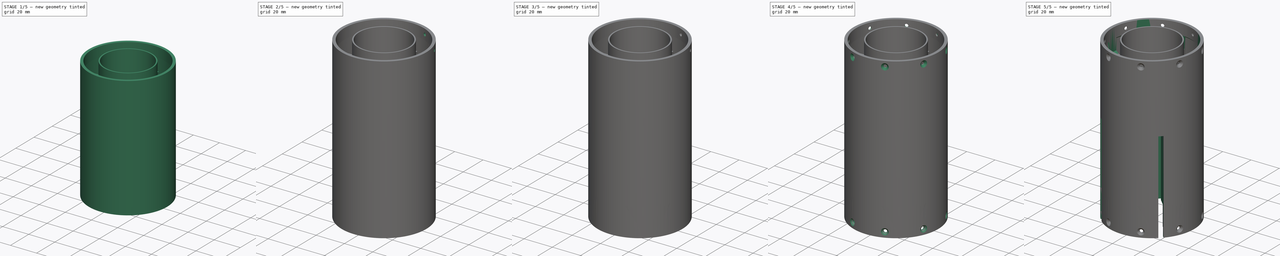
[diagram: build sequence overview — one tinted view per stage of 5, left to right]
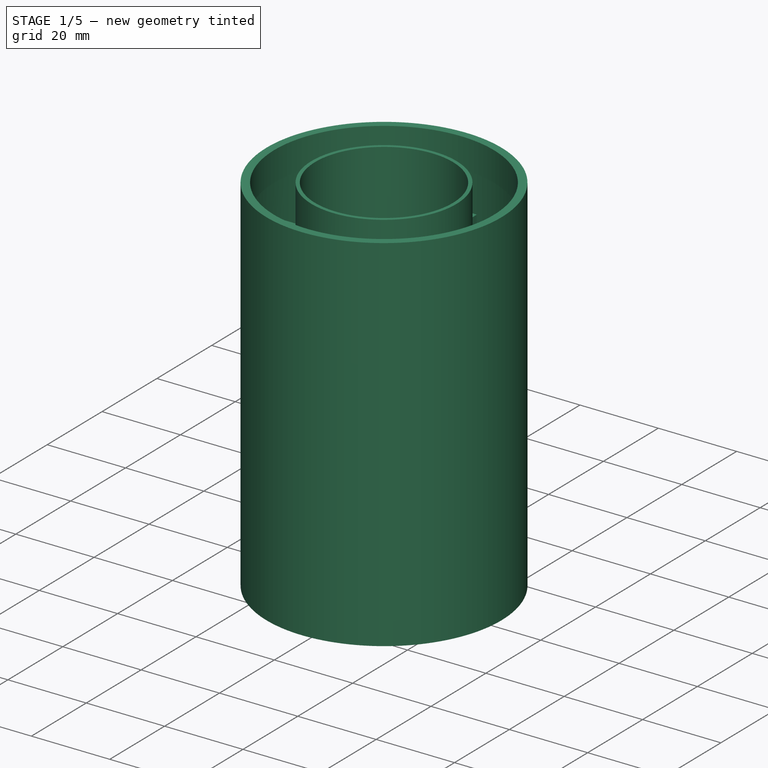
[diagram: stage 1 of 5 — iso view after this stage's code; geometry added in this stage tinted green]
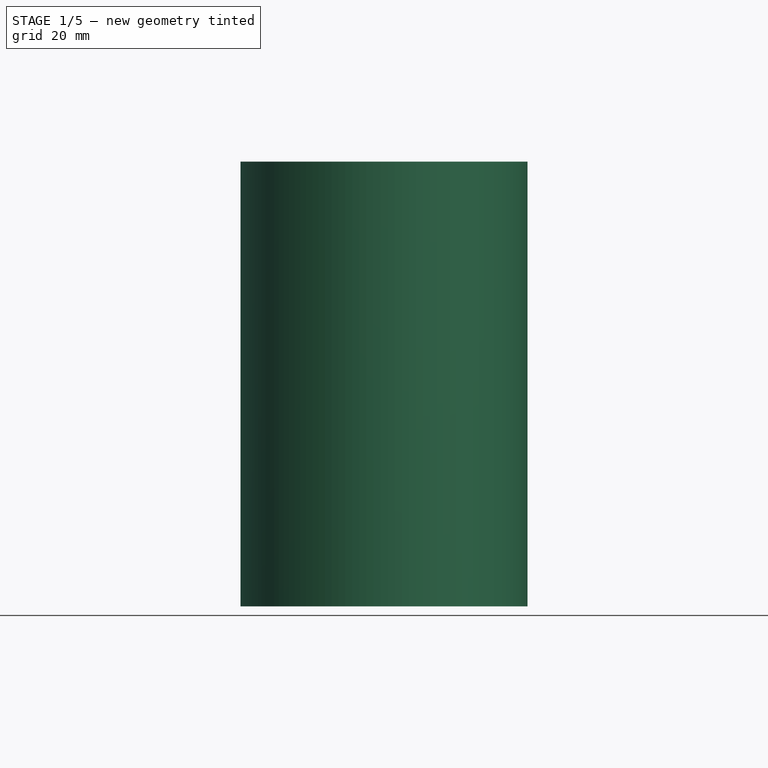
[diagram: stage 1 of 5 — front view after this stage's code; geometry added in this stage tinted green]
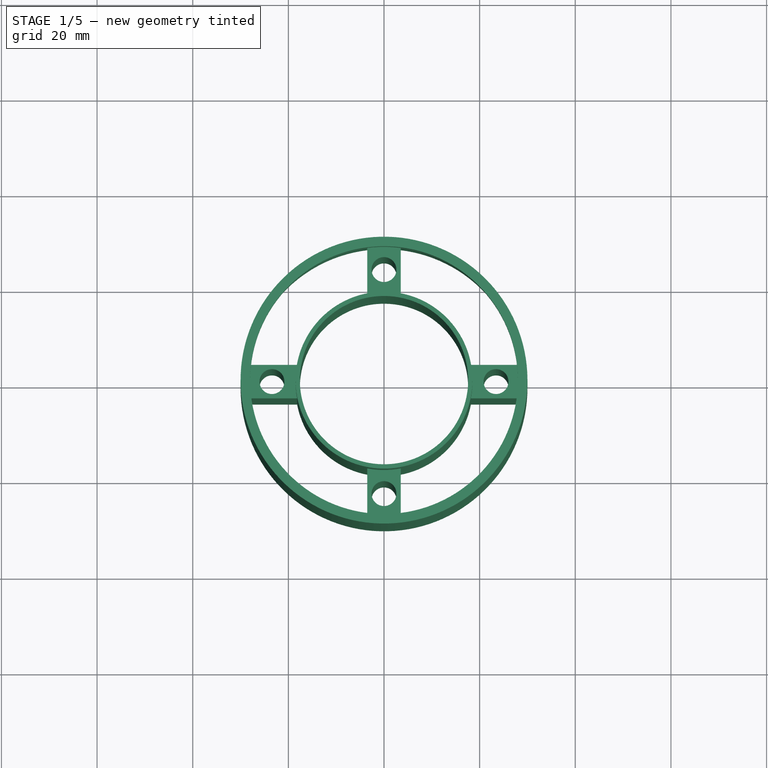
[diagram: stage 1 of 5 — top view after this stage's code; geometry added in this stage tinted green]
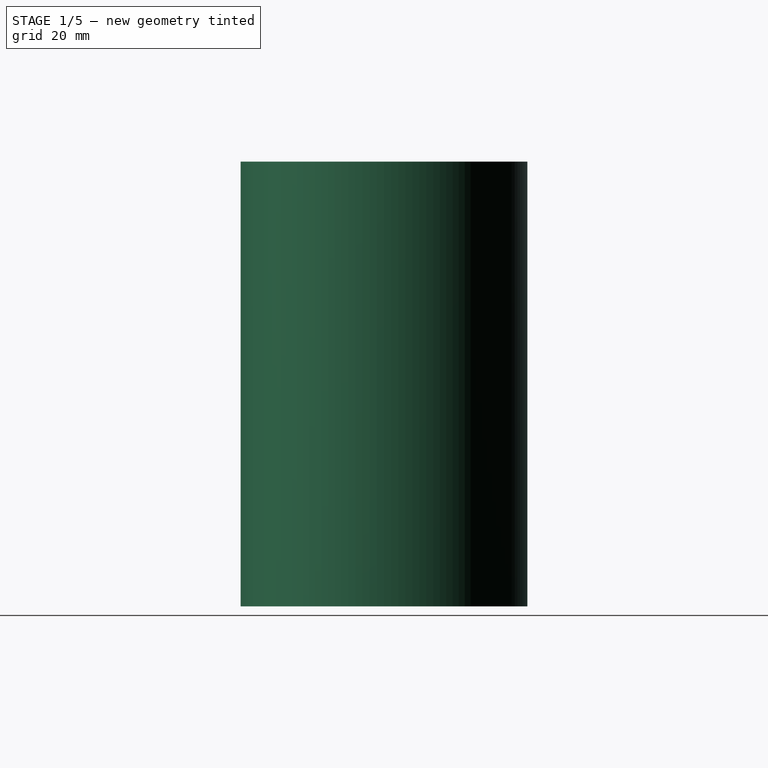
[diagram: stage 1 of 5 — right view after this stage's code; geometry added in this stage tinted green]
FCSTD DOCUMENT  (FreeCAD 1.0R39319 (Git))
Label: lower_fuselage_v1
License: All rights reserved
objects: Sketcher::SketchObject×21, PartDesign::Pad×10, PartDesign::Pocket×9, PartDesign::Plane×5, PartDesign::PolarPattern×4, PartDesign::Chamfer×4, PartDesign::Fillet×1, PartDesign::Body×1
note: 128 computed .brp shape members not serialized (recipe doc carries the construction recipe); baked Part::Feature solids carry a one-line shape summary decoded from their .brp

FEATURE [Sketcher::SketchObject] Sketch
  ArcFitTolerance = 1e-06
  AttachmentSupport = -> [XY_Plane]
  FullyConstrained = true
  MakeInternals = false
  MapMode = 5
  sketch-geometry (2):
    g0: Circle CenterX=0 CenterY=0 CenterZ=0 NormalX=0 NormalY=0 NormalZ=1 AngleXU=0 Radius=30
    g1: Circle CenterX=0 CenterY=0 CenterZ=0 NormalX=0 NormalY=0 NormalZ=1 AngleXU=0 Radius=29
  constraints (4):
    c: Coincident(g0,g-1)
    c: Diameter(g1) = 58
    c: Coincident(g1,g0)
    c: Diameter(g0) = 60
FEATURE [PartDesign::Pad] Pad  label="fusoliera"
  Direction = (0,0,1)
  Length = 93
  Length2 = 10
  Profile = -> Sketch
  ReferenceAxis = -> Sketch [N_Axis]
  Refine = true
  Suppressed = false
  Type = 0
FEATURE [Sketcher::SketchObject] Sketch001
  ArcFitTolerance = 1e-06
  AttachmentSupport = -> [Pad]
  ExternalGeometry = -> [Pad]
  FullyConstrained = true
  MakeInternals = false
  MapMode = 5
  Placement = pos=(0,0,93) rot=(0,0,1;0rad)
  sketch-geometry (2):
    g0: Circle CenterX=0 CenterY=0 CenterZ=0 NormalX=0 NormalY=0 NormalZ=1 AngleXU=0 Radius=29
    g1: Circle CenterX=0 CenterY=0 CenterZ=0 NormalX=0 NormalY=0 NormalZ=1 AngleXU=0 Radius=28
  constraints (4):
    c: Coincident(g0,g-1)
    c: Tangent(g0,g-3)
    c: Diameter(g1) = 56
    c: Coincident(g1,g0)
FEATURE [PartDesign::Pad] Pad001  label="rinforzo_sup"
  BaseFeature = -> Pad
  Direction = (0,0,1)
  Length = 7.5
  Length2 = 10
  Profile = -> Sketch001
  ReferenceAxis = -> Sketch001 [N_Axis]
  Refine = true
  Reversed = true
  Suppressed = false
  Type = 0
FEATURE [Sketcher::SketchObject] Sketch002
  ArcFitTolerance = 1e-06
  AttachmentOffset = pos=(0,0,10) rot=(0,0,1;0rad)
  AttachmentSupport = -> [Pad001]
  ExternalGeometry = -> [Pad001]
  FullyConstrained = false
  MakeInternals = false
  MapMode = 5
  Placement = pos=(0,0,75.5) rot=(1,0,0;3.14159rad)
  sketch-geometry (4):
    g0: LineSegment StartX=-3.5 StartY=29.0882 StartZ=0 EndX=-3.5 EndY=18.0882 EndZ=0
    g1: LineSegment StartX=-3.5 StartY=18.0882 StartZ=0 EndX=3.5 EndY=18.0882 EndZ=0
    g2: LineSegment StartX=3.5 StartY=18.0882 StartZ=0 EndX=3.5 EndY=29.0882 EndZ=0
    g3: LineSegment StartX=3.5 StartY=29.0882 StartZ=0 EndX=-3.5 EndY=29.0882 EndZ=0
  constraints (10):
    c: Coincident(g0,g1)
    c: Coincident(g1,g2)
    c: Coincident(g2,g3)
    c: Coincident(g3,g0)
    c: Vertical(g0)
    c: Vertical(g2)
    c: Horizontal(g3)
    c: DistanceX(g0,g1) = 7
    c: Distance(g0,g0) = 11
    c: Symmetric(g0,g1,g-2)
FEATURE [PartDesign::Pad] Pad002  label="centraggio_motore"
  BaseFeature = -> Pad001
  Direction = (0,0,-1)
  Length = 75.5
  Length2 = 10
  Profile = -> Sketch002
  ReferenceAxis = -> Sketch002 [N_Axis]
  Refine = true
  Suppressed = false
  Type = 0
FEATURE [Sketcher::SketchObject] Sketch003
  ArcFitTolerance = 1e-06
  FullyConstrained = true
  MakeInternals = false
  MapMode = 5
  Placement = pos=(0,0,0) rot=(1,0,0;3.14159rad)
  sketch-geometry (1):
    g0: Circle CenterX=0 CenterY=23.4279 CenterZ=0 NormalX=0 NormalY=0 NormalZ=1 AngleXU=0 Radius=2.6
  constraints (3):
    c: Diameter(g0) = 5.2
    c: PointOnObject(g0,g-2)
    c: DistanceY(g-1,g0) = 23.4279
FEATURE [PartDesign::Pocket] Pocket  label="sede_tondo"
  BaseFeature = -> Pad002
  Direction = (0,0,1)
  Length = 5
  Length2 = 5
  Profile = -> Sketch003
  ReferenceAxis = -> Sketch003 [N_Axis]
  Refine = true
  Suppressed = false
  Type = 1
FEATURE [PartDesign::PolarPattern] PolarPattern
  Angle = 360
  Axis = -> Sketch002 [N_Axis]
  BaseFeature = -> Pocket
  Mode = 0
  Occurrences = 4
  Offset = 120
  Originals = -> [Pad002,Pocket]
  Refine = true
  Suppressed = false
  TransformMode = 0
FEATURE [Sketcher::SketchObject] Sketch004
  ArcFitTolerance = 1e-06
  AttachmentSupport = -> [PolarPattern]
  FullyConstrained = true
  MakeInternals = false
  MapMode = 5
  Placement = pos=(0,0,0) rot=(1,0,0;3.14159rad)
  sketch-geometry (2):
    g0: Circle CenterX=0 CenterY=0 CenterZ=0 NormalX=0 NormalY=0 NormalZ=1 AngleXU=0 Radius=18.5
    g1: Circle CenterX=0 CenterY=0 CenterZ=0 NormalX=0 NormalY=0 NormalZ=1 AngleXU=0 Radius=17.6
  constraints (4):
    c: Diameter(g0) = 37
    c: Coincident(g0,g-1)
    c: Diameter(g1) = 35.2
    c: Coincident(g1,g0)
FEATURE [PartDesign::Pad] Pad003  label="tubo_motore"
  BaseFeature = -> PolarPattern
  Direction = (0,0,-1)
  Length = 93
  Length2 = 10
  Profile = -> Sketch004
  ReferenceAxis = -> Sketch004 [N_Axis]
  Refine = true
  Reversed = true
  Suppressed = false
  Type = 0
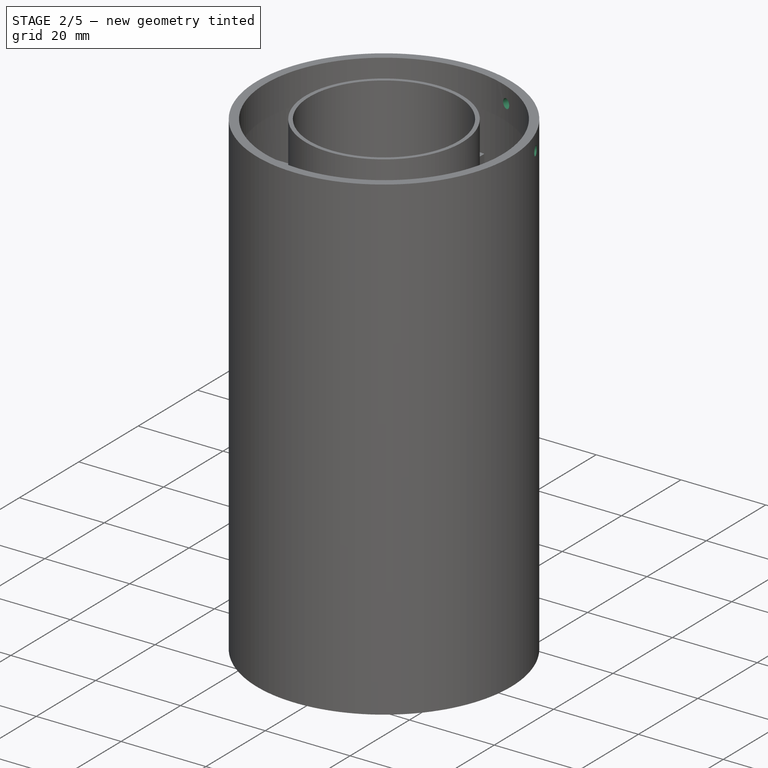
[diagram: stage 2 of 5 — iso view after this stage's code; geometry added in this stage tinted green]
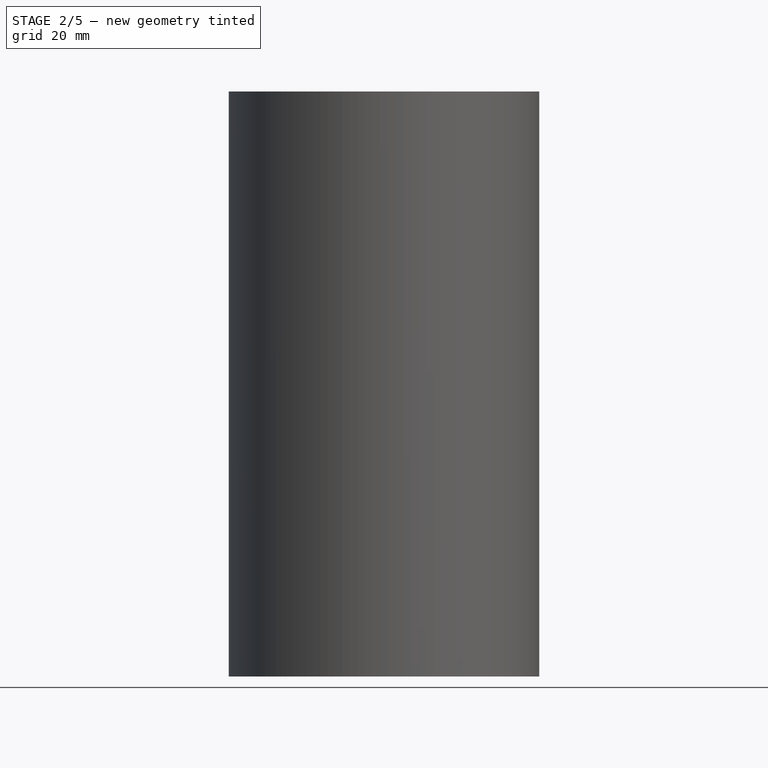
[diagram: stage 2 of 5 — front view after this stage's code; geometry added in this stage tinted green]
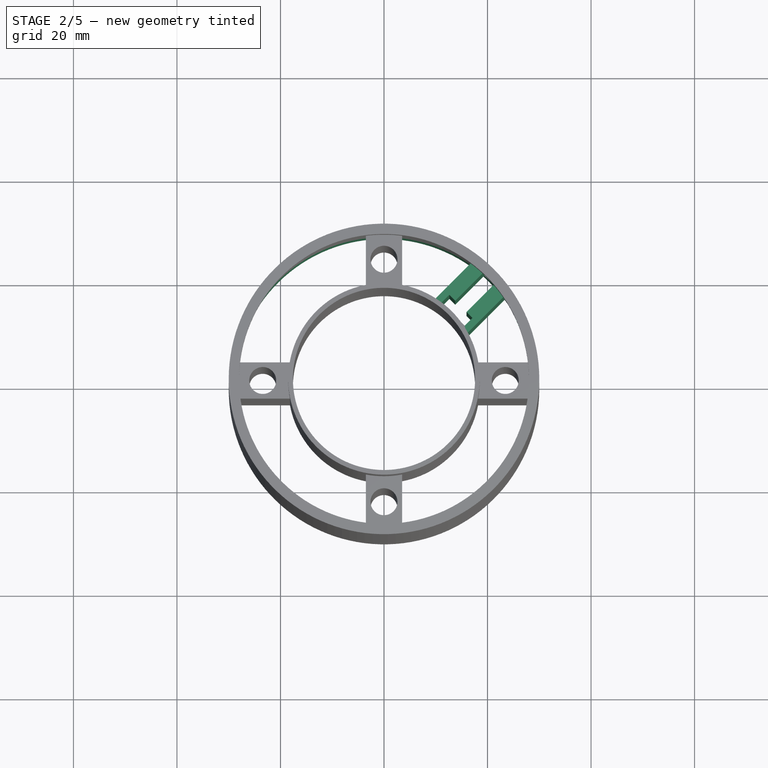
[diagram: stage 2 of 5 — top view after this stage's code; geometry added in this stage tinted green]
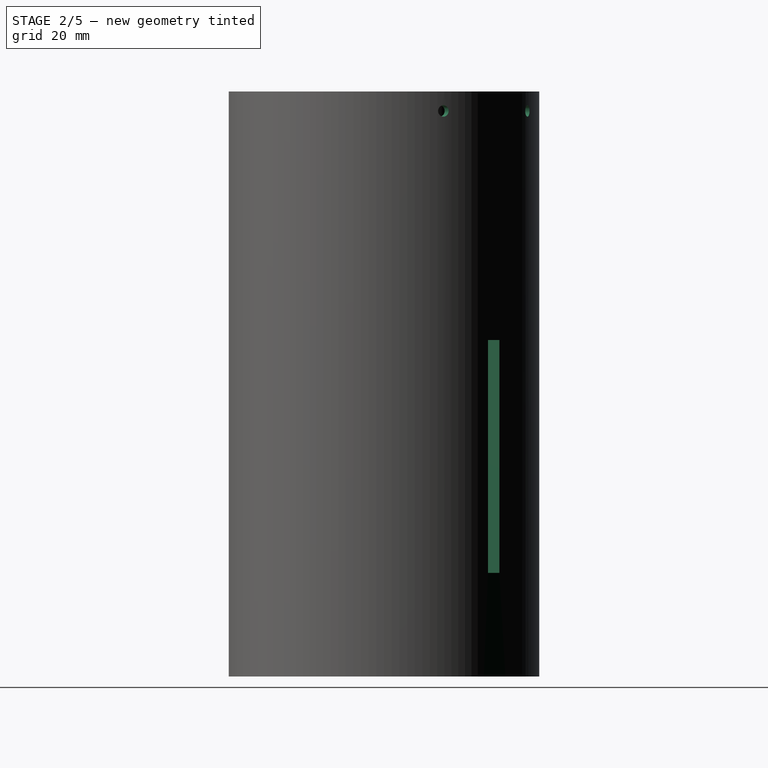
[diagram: stage 2 of 5 — right view after this stage's code; geometry added in this stage tinted green]
FEATURE [Sketcher::SketchObject] Sketch005  label="disegno_di_costruzione"
  ArcFitTolerance = 1e-06
  AttachmentSupport = -> [Pad003]
  ExternalGeometry = -> [Pad003]
  FullyConstrained = true
  MakeInternals = false
  MapMode = 5
  Placement = pos=(0,0,93) rot=(0,0,1;0rad)
  sketch-geometry (3):
    g0: LineSegment StartX=0 StartY=0 StartZ=0 EndX=21.2132 EndY=21.2132 EndZ=0
    g1: LineSegment StartX=0 StartY=0 StartZ=0 EndX=27.7164 EndY=11.4805 EndZ=0
    g2: LineSegment StartX=0 StartY=0 StartZ=0 EndX=11.4805 EndY=27.7164 EndZ=0
  constraints (9):
    c: Coincident(g0,g-1)
    c: PointOnObject(g0,g-3)
    c: Coincident(g1,g0)
    c: PointOnObject(g1,g-3)
    c: Coincident(g2,g0)
    c: PointOnObject(g2,g-3)
    c: Angle(g1,g2) = 0.785398
    c: Angle(g-1,g0) = 0.785398
    c: Angle(g1,g0) = 0.392699
FEATURE [PartDesign::Plane] DatumPlane
  AttachmentSupport = -> [Sketch005]
  Length = 97.6296
  MapMode = 7
  Placement = pos=(27.7164,11.4805,93) rot=(0.726831,-0.485653,-0.485653;1.88458rad)
  ResizeMode = 0
  Width = 137.236
FEATURE [PartDesign::Plane] DatumPlane001
  AttachmentSupport = -> [Sketch005]
  Length = 97.6296
  MapMode = 7
  Placement = pos=(11.4805,27.7164,93) rot=(0.962637,-0.19148,-0.19148;1.60887rad)
  ResizeMode = 0
  Width = 137.236
FEATURE [Sketcher::SketchObject] Sketch006
  ArcFitTolerance = 1e-06
  AttachmentSupport = -> [DatumPlane]
  FullyConstrained = true
  MakeInternals = false
  MapMode = 5
  Placement = pos=(27.7164,11.4805,93) rot=(0.726831,-0.485653,-0.485653;1.88458rad)
  sketch-geometry (1):
    g0: Circle CenterX=0 CenterY=-3.75 CenterZ=0 NormalX=0 NormalY=0 NormalZ=1 AngleXU=0 Radius=1.1
  constraints (3):
    c: Diameter(g0) = 2.2
    c: PointOnObject(g0,g-2)
    c: Distance(g0,g-1) = 3.75
FEATURE [PartDesign::Pocket] Pocket001  label="sede_viti_sup_1"
  BaseFeature = -> Pad003
  Direction = (0.92388,0.382683,0)
  Length = 3
  Length2 = 5
  Profile = -> Sketch006
  ReferenceAxis = -> Sketch006 [N_Axis]
  Refine = true
  Reversed = true
  Suppressed = false
  Type = 0
  UpToShape = -> [Pad003]
FEATURE [Sketcher::SketchObject] Sketch007
  ArcFitTolerance = 1e-06
  AttachmentSupport = -> [DatumPlane001]
  FullyConstrained = true
  MakeInternals = false
  MapMode = 5
  Placement = pos=(11.4805,27.7164,93) rot=(0.962637,-0.19148,-0.19148;1.60887rad)
  sketch-geometry (1):
    g0: Circle CenterX=0 CenterY=-3.75 CenterZ=0 NormalX=0 NormalY=0 NormalZ=1 AngleXU=0 Radius=1.1
  constraints (3):
    c: Diameter(g0) = 2.2
    c: PointOnObject(g0,g-2)
    c: DistanceY(g0,g-1) = 3.75
FEATURE [PartDesign::Pocket] Pocket002  label="sede_viti_sup_2"
  BaseFeature = -> Pocket001
  Direction = (0.382683,0.92388,3e-16)
  Length = 3
  Length2 = 5
  Profile = -> Sketch007
  ReferenceAxis = -> Sketch007 [N_Axis]
  Refine = true
  Reversed = true
  Suppressed = false
  Type = 0
FEATURE [Sketcher::SketchObject] Sketch008
  ArcFitTolerance = 1e-06
  AttachmentSupport = -> [Pocket002]
  ExternalGeometry = -> [Sketch005,Pocket002]
  FullyConstrained = true
  MakeInternals = false
  MapMode = 5
  Placement = pos=(0,0,0) rot=(1,0,0;3.14159rad)
  sketch-geometry (5):
    g0: LineSegment StartX=9.22774 StartY=-15.6624 StartZ=0 EndX=15.6624 EndY=-9.22774 EndZ=0
    g1: LineSegment StartX=15.6624 StartY=-9.22774 StartZ=0 EndX=23.7234 EndY=-17.2888 EndZ=0
    g2: LineSegment StartX=23.7234 StartY=-17.2888 StartZ=0 EndX=17.2888 EndY=-23.7234 EndZ=0
    g3: LineSegment StartX=17.2888 StartY=-23.7234 StartZ=0 EndX=9.22774 EndY=-15.6624 EndZ=0
    g4: GeomPoint X=20.5061 Y=-20.5061 Z=0
  constraints (14):
    c: Coincident(g0,g1)
    c: Coincident(g1,g2)
    c: Coincident(g2,g3)
    c: Coincident(g3,g0)
    c: Parallel(g3,g1)
    c: Parallel(g3,g-3)
    c: Perpendicular(g3,g0)
    c: Perpendicular(g3,g2)
    c: Tangent(g-5,g2)
    c: Tangent(g0,g-4)
    c: Distance(g2,g1) = 9.1
    c: PointOnObject(g4,g-5)
    c: PointOnObject(g4,g-3)
    c: Distance(g4,g1) = 4.55
FEATURE [PartDesign::Pad] Pad004  label="fin_can_1"
  BaseFeature = -> Pocket002
  Direction = (0,0,-1)
  Length = 45
  Length2 = 10
  Profile = -> Sketch008
  ReferenceAxis = -> Sketch008 [N_Axis]
  Refine = true
  Reversed = true
  Suppressed = false
  Type = 0
FEATURE [Sketcher::SketchObject] Sketch009
  ArcFitTolerance = 1e-06
  AttachmentSupport = -> [Pad004]
  ExternalGeometry = -> [Sketch005,Pad004]
  FullyConstrained = false
  MakeInternals = false
  MapMode = 5
  Placement = pos=(0,0,0) rot=(1,0,0;3.14159rad)
  sketch-geometry (10):
    g0: LineSegment StartX=12.2683 StartY=-14.4603 StartZ=0 EndX=14.4603 EndY=-12.2683 EndZ=0
    g1: LineSegment StartX=15.9453 StartY=-13.7532 StartZ=0 EndX=22.3092 EndY=-20.1172 EndZ=0
    g2: LineSegment StartX=22.3092 StartY=-20.1172 StartZ=0 EndX=20.1172 EndY=-22.3092 EndZ=0
    g3: LineSegment StartX=20.1172 StartY=-22.3092 StartZ=0 EndX=13.7532 EndY=-15.9453 EndZ=0
    g4: LineSegment StartX=14.4603 StartY=-12.2683 StartZ=0 EndX=15.5917 EndY=-11.1369 EndZ=0
    g5: LineSegment StartX=15.5917 StartY=-11.1369 StartZ=0 EndX=17.0766 EndY=-12.6219 EndZ=0
    g6: LineSegment StartX=17.0766 StartY=-12.6219 StartZ=0 EndX=15.9453 EndY=-13.7532 EndZ=0
    g7: LineSegment StartX=13.7532 StartY=-15.9453 StartZ=0 EndX=12.6219 EndY=-17.0766 EndZ=0
    g8: LineSegment StartX=12.6219 StartY=-17.0766 StartZ=0 EndX=11.1369 EndY=-15.5917 EndZ=0
    g9: LineSegment StartX=11.1369 StartY=-15.5917 StartZ=0 EndX=12.2683 EndY=-14.4603 EndZ=0
  constraints (28):
    c: Coincident(g1,g2)
    c: Coincident(g2,g3)
    c: Parallel(g3,g1)
    c: Parallel(g-3,g3)
    c: Perpendicular(g0,g3)
    c: Perpendicular(g1,g2)
    c: Tangent(g2,g-4)
    c: Distance(g2,g0) = 11.1
    c: Distance(g2,g1) = 3.1
    c: Distance(g2,g-3) = 1.55
    c: Coincident(g0,g4)
    c: Coincident(g4,g5)
    c: Coincident(g5,g6)
    c: Coincident(g7,g8)
    c: Coincident(g8,g9)
    c: Coincident(g9,g0)
    c: Parallel(g9,g0)
    c: Parallel(g4,g0)
    c: Parallel(g7,g0)
    c: Parallel(g6,g0)
    c: Perpendicular(g8,g7)
    c: Perpendicular(g6,g5)
    c: Distance(g6,g5) = 1.6
    c: Distance(g7,g7) = 1.6
    c: Distance(g8,g7) = 2.1
    c: Distance(g4,g5) = 2.1
    c: Coincident(g1,g6)
    c: Coincident(g3,g7)
FEATURE [PartDesign::Pocket] Pocket003  label="fin_can_2"
  BaseFeature = -> Pad004
  Direction = (0,0,1)
  Length = 45
  Length2 = 5
  Profile = -> Sketch009
  ReferenceAxis = -> Sketch009 [N_Axis]
  Refine = true
  Suppressed = false
  Type = 0
FEATURE [Sketcher::SketchObject] Sketch011
  ArcFitTolerance = 1e-06
  FullyConstrained = true
  MakeInternals = false
  MapMode = 5
  Placement = pos=(0,0,0) rot=(1,0,0;3.14159rad)
  sketch-geometry (2):
    g0: Circle CenterX=0 CenterY=0 CenterZ=0 NormalX=0 NormalY=0 NormalZ=1 AngleXU=0 Radius=30
    g1: Circle CenterX=0 CenterY=0 CenterZ=0 NormalX=0 NormalY=0 NormalZ=1 AngleXU=0 Radius=29
  constraints (4):
    c: Coincident(g0,g-1)
    c: Tangent(g0,g-3)
    c: Coincident(g1,g0)
    c: Tangent(g1,g-4)
FEATURE [PartDesign::Pad] Pad006  label="fusoliera_inf"
  BaseFeature = -> Pocket003
  Direction = (0,-1e-16,-1)
  Length = 20
  Length2 = 10
  Profile = -> Sketch011
  ReferenceAxis = -> Sketch011 [N_Axis]
  Refine = true
  Suppressed = false
  Type = 0
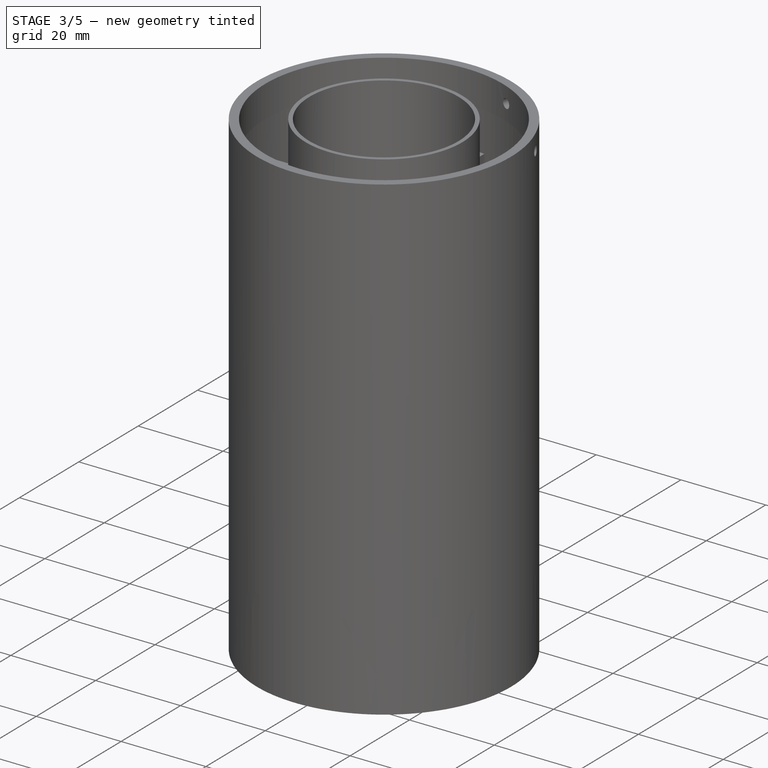
[diagram: stage 3 of 5 — iso view after this stage's code; geometry added in this stage tinted green]
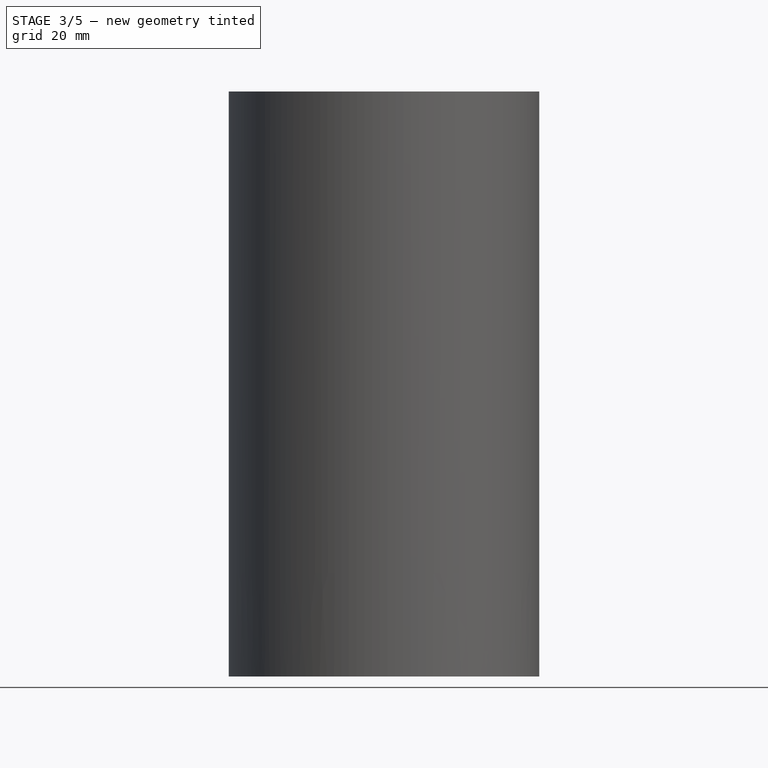
[diagram: stage 3 of 5 — front view after this stage's code; geometry added in this stage tinted green]
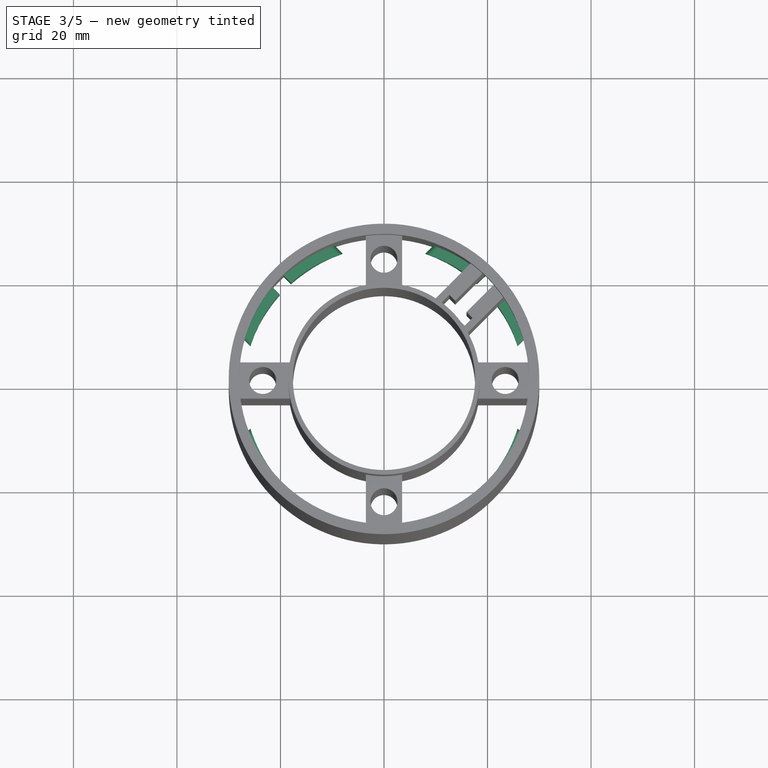
[diagram: stage 3 of 5 — top view after this stage's code; geometry added in this stage tinted green]
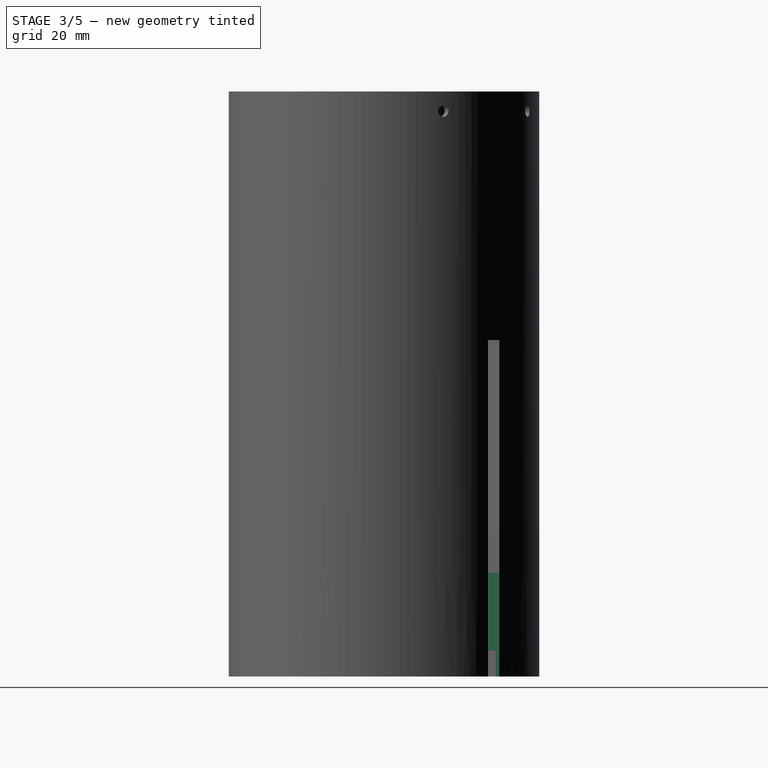
[diagram: stage 3 of 5 — right view after this stage's code; geometry added in this stage tinted green]
FEATURE [Sketcher::SketchObject] Sketch012
  ArcFitTolerance = 1e-06
  AttachmentSupport = -> [Pad006]
  ExternalGeometry = -> [Sketch005]
  FullyConstrained = false
  MakeInternals = false
  MapMode = 5
  Placement = pos=(0,0,-20) rot=(1,0,0;3.14159rad)
  sketch-geometry (4):
    g0: LineSegment StartX=20.1172 StartY=-22.3092 StartZ=0 EndX=22.3092 EndY=-20.1172 EndZ=0
    g1: LineSegment StartX=22.3092 StartY=-20.1172 StartZ=0 EndX=21.3422 EndY=-19.1502 EndZ=0
    g2: LineSegment StartX=20.1172 StartY=-22.3092 StartZ=0 EndX=19.1502 EndY=-21.3422 EndZ=0
    g3: LineSegment StartX=19.1502 StartY=-21.3422 StartZ=0 EndX=21.3422 EndY=-19.1502 EndZ=0
  constraints (10):
    c: Perpendicular(g-3,g0)
    c: Symmetric(g0,g0,g-3)
    c: Distance(g0,g0) = 3.1
    c: Coincident(g1,g0)
    c: Coincident(g2,g0)
    c: Coincident(g3,g2)
    c: Coincident(g3,g1)
    c: Perpendicular(g0,g2)
    c: Perpendicular(g0,g1)
    c: Parallel(g0,g3)
FEATURE [PartDesign::Pocket] Pocket004  label="fin_can_5"
  BaseFeature = -> Pad006
  Direction = (0,0,1)
  Length = 20
  Length2 = 5
  Profile = -> Sketch012
  ReferenceAxis = -> Sketch012 [N_Axis]
  Refine = true
  Suppressed = false
  Type = 0
FEATURE [PartDesign::Plane] DatumPlane002
  Length = 104.865
  MapMode = 7
  Placement = pos=(20.0889,22.2809,-20) rot=(0.281085,0.678598,0.678598;2.59356rad)
  ResizeMode = 0
  Width = 138.013
FEATURE [Sketcher::SketchObject] Sketch013
  ArcFitTolerance = 1e-06
  AttachmentSupport = -> [DatumPlane002]
  FullyConstrained = false
  MakeInternals = false
  MapMode = 5
  Placement = pos=(20.0889,22.2809,-20) rot=(0.281085,0.678598,0.678598;2.59356rad)
  sketch-geometry (9):
    g0: LineSegment [constr] StartX=-1.55 StartY=21.2508 StartZ=0 EndX=-1.55 EndY=5 EndZ=0
    g1: LineSegment StartX=0 StartY=5 StartZ=0 EndX=3 EndY=5 EndZ=0
    g2: LineSegment StartX=3 StartY=5 StartZ=0 EndX=11.82 EndY=20 EndZ=0
    g3: LineSegment StartX=11.82 StartY=20 StartZ=0 EndX=0 EndY=20 EndZ=0
    g4: LineSegment StartX=0 StartY=20 StartZ=0 EndX=0 EndY=5 EndZ=0
    g5: LineSegment StartX=-3.1 StartY=5 StartZ=0 EndX=-6.1 EndY=5 EndZ=0
    g6: LineSegment StartX=-6.1 StartY=5 StartZ=0 EndX=-14.92 EndY=20 EndZ=0
    g7: LineSegment StartX=-14.92 StartY=20 StartZ=0 EndX=-3.1 EndY=20 EndZ=0
    g8: LineSegment StartX=-3.1 StartY=20 StartZ=0 EndX=-3.1 EndY=5 EndZ=0
  constraints (26):
    c: Vertical(g0)
    c: Horizontal(g1)
    c: Coincident(g1,g2)
    c: Coincident(g2,g3)
    c: PointOnObject(g3,g-2)
    c: Horizontal(g3)
    c: Coincident(g3,g4)
    c: Coincident(g4,g1)
    c: PointOnObject(g3,g-4)
    c: DistanceX(g0,g1) = 4.55
    c: DistanceX(g0,g2) = 13.37
    c: Coincident(g5,g6)
    c: Coincident(g6,g7)
    c: PointOnObject(g7,g-3)
    c: Horizontal(g7)
    c: Coincident(g7,g8)
    c: Coincident(g8,g5)
    c: DistanceX(g5,g0) = 4.55
    c: PointOnObject(g7,g-4)
    c: DistanceX(g6,g0) = 13.37
    c: PointOnObject(g1,g-2)
    c: PointOnObject(g5,g-3)
    c: Horizontal(g5)
    c: Symmetric(g5,g1,g0)
    c: DistanceY(g-1,g0) = 5
    c: DistanceY(g5,g0) = 0
FEATURE [PartDesign::Pad] Pad007  label="incastro_rear_transition_1"
  BaseFeature = -> Pocket004
  Direction = (0.707107,0.707107,1e-16)
  Length = 7
  Length2 = 10
  Profile = -> Sketch013
  ReferenceAxis = -> Sketch013 [N_Axis]
  Refine = true
  Reversed = true
  Suppressed = false
  Type = 0
FEATURE [PartDesign::PolarPattern] PolarPattern002
  Angle = 360
  Axis = -> Z_Axis
  BaseFeature = -> Pad007
  Mode = 0
  Occurrences = 4
  Offset = 120
  Originals = -> [Pad007]
  Refine = true
  Suppressed = false
  TransformMode = 0
FEATURE [Sketcher::SketchObject] Sketch014
  ArcFitTolerance = 1e-06
  AttachmentSupport = -> [PolarPattern002]
  ExternalGeometry = -> [PolarPattern002]
  FullyConstrained = false
  MakeInternals = false
  MapMode = 5
  Placement = pos=(0,0,-20) rot=(1,0,0;3.14159rad)
  sketch-geometry (2):
    g0: Circle CenterX=0 CenterY=0 CenterZ=0 NormalX=0 NormalY=0 NormalZ=1 AngleXU=0 Radius=27
    g1: Circle CenterX=0 CenterY=0 CenterZ=0 NormalX=0 NormalY=0 NormalZ=1 AngleXU=0 Radius=22.4743
  constraints (2):
    c: Diameter(g0) = 54
    c: Coincident(g0,g-1)
FEATURE [PartDesign::Pocket] Pocket005
  BaseFeature = -> PolarPattern002
  Direction = (0,0,1)
  Length = 20
  Length2 = 5
  Profile = -> Sketch014
  ReferenceAxis = -> Sketch014 [N_Axis]
  Refine = true
  Suppressed = false
  Type = 0
FEATURE [Sketcher::SketchObject] Sketch015
  ArcFitTolerance = 1e-06
  AttachmentSupport = -> [Pocket005]
  FullyConstrained = false
  MakeInternals = false
  MapMode = 5
  Placement = pos=(0,0,-20) rot=(1,0,0;3.14159rad)
  sketch-geometry (2):
    g0: Circle CenterX=0 CenterY=0 CenterZ=0 NormalX=0 NormalY=0 NormalZ=1 AngleXU=0 Radius=30
    g1: Circle CenterX=0 CenterY=0 CenterZ=0 NormalX=0 NormalY=0 NormalZ=1 AngleXU=0 Radius=34.5764
  constraints (3):
    c: Coincident(g0,g-1)
    c: Tangent(g0,g-3)
    c: Coincident(g1,g0)
FEATURE [PartDesign::Pocket] Pocket006
  BaseFeature = -> Pocket005
  Direction = (0,0,1)
  Length = 20
  Length2 = 5
  Profile = -> Sketch015
  ReferenceAxis = -> Sketch015 [N_Axis]
  Refine = true
  Suppressed = false
  Type = 0
FEATURE [PartDesign::Fillet] Fillet
  Base = -> Pocket006 [Edge228,Edge234,Edge232,Edge230,Edge223,Edge226,Edge92,Edge153,Edge208,Edge207,Edge238,Edge220,Edge217,Edge244,Edge248,Edge214,Edge254,Edge211]
  BaseFeature = -> Pocket006
  Radius = 1
  Refine = true
  SupportTransform = false
  Suppressed = false
  UseAllEdges = false
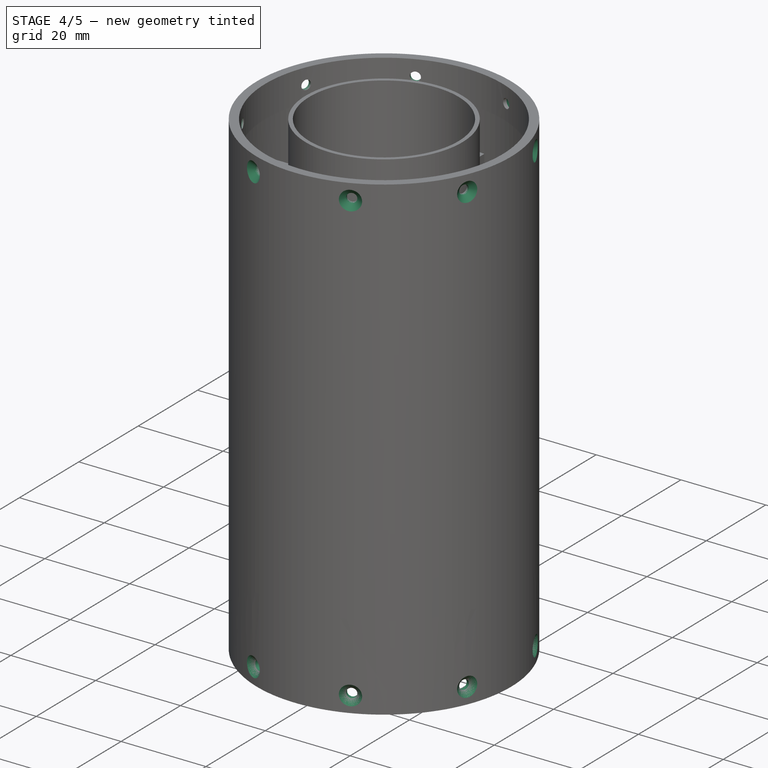
[diagram: stage 4 of 5 — iso view after this stage's code; geometry added in this stage tinted green]
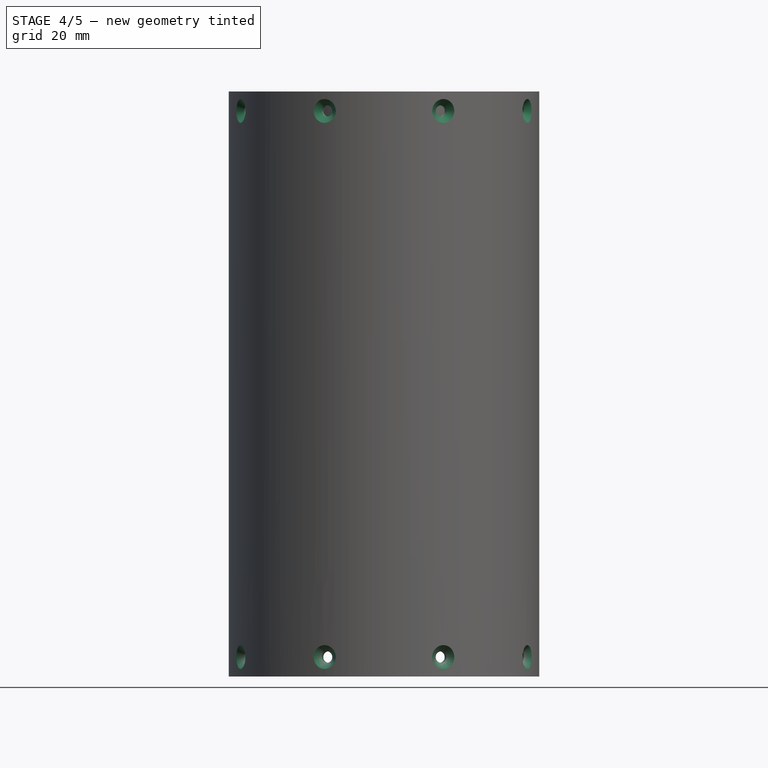
[diagram: stage 4 of 5 — front view after this stage's code; geometry added in this stage tinted green]
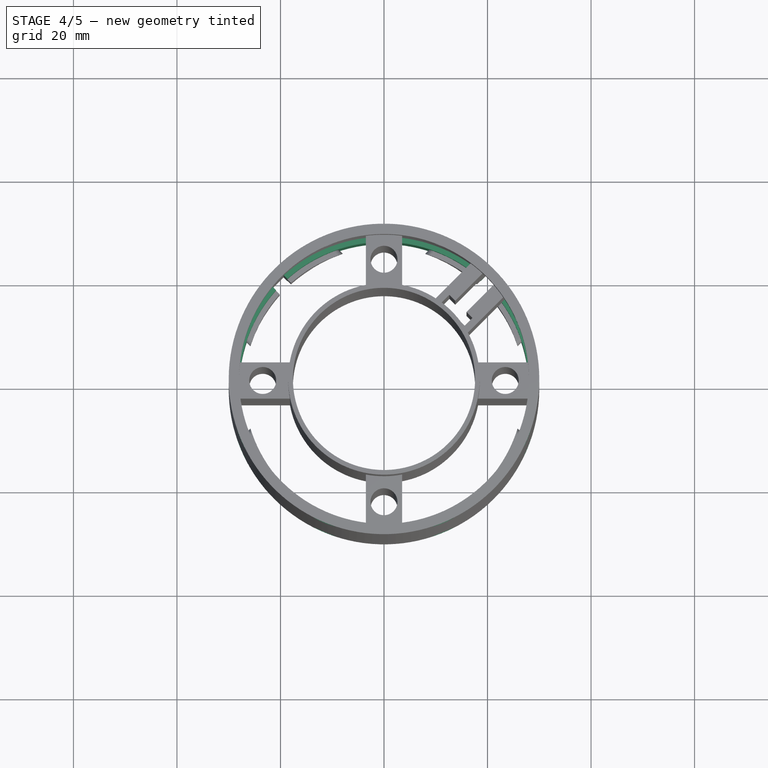
[diagram: stage 4 of 5 — top view after this stage's code; geometry added in this stage tinted green]
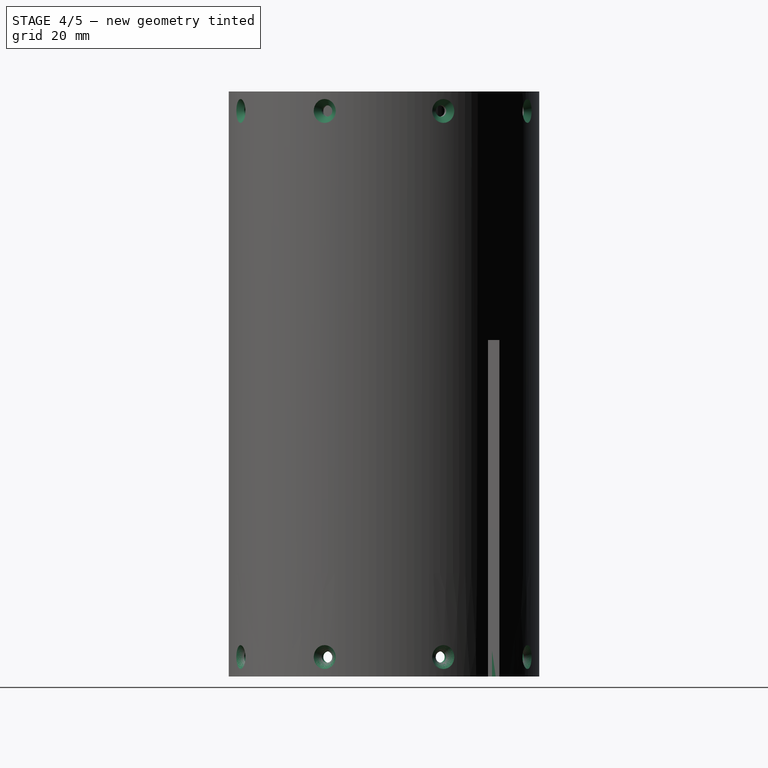
[diagram: stage 4 of 5 — right view after this stage's code; geometry added in this stage tinted green]
FEATURE [Sketcher::SketchObject] Sketch016  label="disegno_di_costruzione_2"
  ArcFitTolerance = 1e-06
  ExternalGeometry = -> [Sketch005]
  FullyConstrained = true
  MakeInternals = false
  MapMode = 5
  Placement = pos=(0,0,-20) rot=(1,0,0;3.14159rad)
  sketch-geometry (2):
    g0: LineSegment StartX=0 StartY=0 StartZ=0 EndX=11.4805 EndY=-27.7164 EndZ=0
    g1: LineSegment StartX=0 StartY=0 StartZ=0 EndX=27.7164 EndY=-11.4805 EndZ=0
  constraints (4):
    c: Coincident(g0,g-1)
    c: Coincident(g0,g-3)
    c: Coincident(g1,g0)
    c: Coincident(g1,g-4)
FEATURE [PartDesign::Plane] DatumPlane003
  AttachmentSupport = -> [Sketch016]
  Length = 97.6296
  MapMode = 7
  Placement = pos=(11.4805,27.7164,-20) rot=(0.962637,-0.19148,-0.19148;1.60887rad)
  ResizeMode = 0
  Width = 137.236
FEATURE [PartDesign::Plane] DatumPlane004
  AttachmentSupport = -> [Sketch016]
  Length = 97.6296
  MapMode = 7
  Placement = pos=(27.7164,11.4805,-20) rot=(0.726831,-0.485653,-0.485653;1.88458rad)
  ResizeMode = 0
  Width = 137.236
FEATURE [Sketcher::SketchObject] Sketch017
  ArcFitTolerance = 1e-06
  AttachmentSupport = -> [DatumPlane003]
  FullyConstrained = true
  MakeInternals = false
  MapMode = 5
  Placement = pos=(11.4805,27.7164,-20) rot=(0.962637,-0.19148,-0.19148;1.60887rad)
  sketch-geometry (1):
    g0: Circle CenterX=0 CenterY=3.75 CenterZ=0 NormalX=0 NormalY=0 NormalZ=1 AngleXU=0 Radius=1.1
  constraints (3):
    c: Diameter(g0) = 2.2
    c: PointOnObject(g0,g-2)
    c: DistanceY(g-1,g0) = 3.75
FEATURE [Sketcher::SketchObject] Sketch018
  ArcFitTolerance = 1e-06
  AttachmentSupport = -> [DatumPlane004]
  FullyConstrained = true
  MakeInternals = false
  MapMode = 5
  Placement = pos=(27.7164,11.4805,-20) rot=(0.726831,-0.485653,-0.485653;1.88458rad)
  sketch-geometry (1):
    g0: Circle CenterX=0 CenterY=3.75 CenterZ=0 NormalX=0 NormalY=0 NormalZ=1 AngleXU=0 Radius=1.1
  constraints (3):
    c: Diameter(g0) = 2.2
    c: PointOnObject(g0,g-2)
    c: DistanceY(g-1,g0) = 3.75
FEATURE [Sketcher::SketchObject] Sketch019
  ArcFitTolerance = 1e-06
  FullyConstrained = false
  MakeInternals = false
  MapMode = 5
  Placement = pos=(0,0,-20) rot=(1,0,0;3.14159rad)
  sketch-geometry (16):
    g0: ArcOfCircle CenterX=0 CenterY=0 CenterZ=0 NormalX=0 NormalY=0 NormalZ=1 AngleXU=0 Radius=29 StartAngle=0.838872 EndAngle=2.30272
    g1: ArcOfCircle CenterX=0 CenterY=0 CenterZ=0 NormalX=0 NormalY=0 NormalZ=1 AngleXU=0 Radius=28 StartAngle=0.840784 EndAngle=2.30081
    g2: LineSegment StartX=19.3808 StartY=21.5728 StartZ=0 EndX=18.6726 EndY=20.8646 EndZ=0
    g3: LineSegment StartX=21.5714 StartY=19.3823 StartZ=0 EndX=20.8633 EndY=18.6742 EndZ=0
    g4: LineSegment StartX=-21.5728 StartY=19.3808 StartZ=0 EndX=-20.8646 EndY=18.6726 EndZ=0
    g5: LineSegment StartX=-19.3808 StartY=21.5728 StartZ=0 EndX=-18.6726 EndY=20.8646 EndZ=0
    g6: ArcOfCircle CenterX=0 CenterY=0 CenterZ=0 NormalX=0 NormalY=0 NormalZ=1 AngleXU=0 Radius=29 StartAngle=2.40967 EndAngle=3.87352
    g7: ArcOfCircle CenterX=0 CenterY=0 CenterZ=0 NormalX=0 NormalY=0 NormalZ=1 AngleXU=0 Radius=28 StartAngle=2.41158 EndAngle=3.87161
    g8: LineSegment StartX=-21.5728 StartY=-19.3808 StartZ=0 EndX=-20.8646 EndY=-18.6726 EndZ=0
    g9: LineSegment StartX=-18.6726 StartY=-20.8646 StartZ=0 EndX=-19.3808 EndY=-21.5728 EndZ=0
    g10: ArcOfCircle CenterX=0 CenterY=0 CenterZ=0 NormalX=0 NormalY=0 NormalZ=1 AngleXU=0 Radius=28 StartAngle=3.98238 EndAngle=5.4424
    g11: ArcOfCircle CenterX=0 CenterY=0 CenterZ=0 NormalX=0 NormalY=0 NormalZ=1 AngleXU=0 Radius=29 StartAngle=3.98046 EndAngle=5.44431
    g12: LineSegment StartX=19.3808 StartY=-21.5728 StartZ=0 EndX=18.6726 EndY=-20.8646 EndZ=0
    g13: LineSegment StartX=21.5728 StartY=-19.3808 StartZ=0 EndX=20.8646 EndY=-18.6726 EndZ=0
    g14: ArcOfCircle CenterX=0 CenterY=0 CenterZ=0 NormalX=0 NormalY=0 NormalZ=1 AngleXU=0 Radius=28 StartAngle=5.55317 EndAngle=7.01327
    g15: ArcOfCircle CenterX=0 CenterY=0 CenterZ=0 NormalX=0 NormalY=0 NormalZ=1 AngleXU=0 Radius=29 StartAngle=5.55126 EndAngle=7.01518
  constraints (41):
    c: Coincident(g0,g-1)
    c: Diameter(g1) = 56
    c: Coincident(g1,g0)
    c: Coincident(g2,g-4)
    c: Parallel(g3,g-5)
    c: Parallel(g2,g-4)
    c: Coincident(g15,g3)
    c: Coincident(g0,g2)
    c: Coincident(g2,g1)
    c: Coincident(g3,g14)
    c: Coincident(g4,g-6)
    c: Coincident(g5,g-7)
    c: Equal(g0,g6)
    c: PointOnObject(g0,g-7)
    c: PointOnObject(g6,g-6)
    c: Coincident(g0,g6)
    c: Equal(g1,g7)
    c: Coincident(g1,g7)
    c: Coincident(g4,g7)
    c: Coincident(g5,g1)
    c: Coincident(g8,g-8)
    c: Coincident(g9,g-9)
    c: Equal(g7,g10)
    c: Coincident(g7,g8)
    c: Coincident(g7,g10)
    c: Equal(g6,g11)
    c: PointOnObject(g6,g8)
    c: PointOnObject(g11,g9)
    c: Coincident(g6,g11)
    c: Coincident(g9,g10)
    c: Coincident(g12,g-11)
    c: Coincident(g13,g-10)
    c: PointOnObject(g13,g14)
    c: Equal(g10,g14)
    c: Coincident(g10,g12)
    c: PointOnObject(g14,g13)
    c: Coincident(g10,g14)
    c: Equal(g11,g15)
    c: PointOnObject(g11,g12)
    c: PointOnObject(g15,g13)
    c: Coincident(g11,g15)
FEATURE [PartDesign::Pad] Pad008  label="rinforzo_inferiore"
  BaseFeature = -> Fillet
  Direction = (0,-1e-16,-1)
  Length = 25
  Length2 = 10
  Profile = -> Sketch019
  ReferenceAxis = -> Sketch019 [N_Axis]
  Refine = true
  Reversed = true
  Suppressed = false
  Type = 0
FEATURE [PartDesign::Pocket] Pocket007  label="sede_viti_inf_1"
  BaseFeature = -> Pad008
  Direction = (0.382683,0.92388,2e-16)
  Length = 3
  Length2 = 5
  Profile = -> Sketch017
  ReferenceAxis = -> Sketch017 [N_Axis]
  Refine = true
  Reversed = true
  Suppressed = false
  Type = 0
FEATURE [PartDesign::Pocket] Pocket008  label="sede_viti_inf_2"
  BaseFeature = -> Pocket007
  Direction = (0.92388,0.382683,3e-16)
  Length = 3
  Length2 = 5
  Profile = -> Sketch018
  ReferenceAxis = -> Sketch018 [N_Axis]
  Refine = true
  Reversed = true
  Suppressed = false
  Type = 0
FEATURE [PartDesign::PolarPattern] PolarPattern003
  Angle = 360
  Axis = -> Z_Axis
  BaseFeature = -> Pocket008
  Mode = 0
  Occurrences = 4
  Offset = 120
  Originals = -> [Pocket001,Pocket002,Pocket007,Pocket008]
  Refine = true
  Suppressed = false
  TransformMode = 0
FEATURE [PartDesign::Chamfer] Chamfer002
  Angle = 45
  Base = -> PolarPattern003 [Edge290,Edge291,Edge289,Edge284,Edge282,Edge283,Edge298,Edge297,Edge296,Edge304,Edge305,Edge303,Edge311,Edge312,Edge310,Edge267,Edge266,Edge265,Edge269,Edge270,Edge268,Edge277,Edge276,Edge275,Edge248,Edge249,Edge247,Edge245,Edge246,Edge264,Edge262,Edge263,Edge261,Edge259,Edge260,Edge258,Edge256,Edge257,Edge255,Edge253,+4 more]
  BaseFeature = -> PolarPattern003
  ChamferType = 0
  FlipDirection = false
  Refine = true
  Size = 1.2
  Size2 = 1
  SupportTransform = false
  Suppressed = false
  UseAllEdges = false
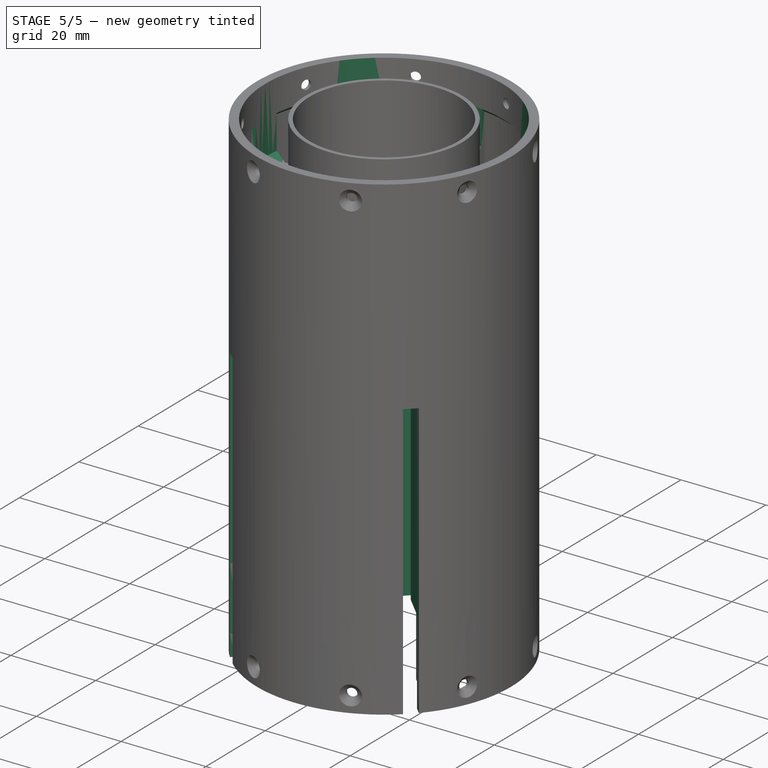
[diagram: stage 5 of 5 — iso view after this stage's code; geometry added in this stage tinted green]
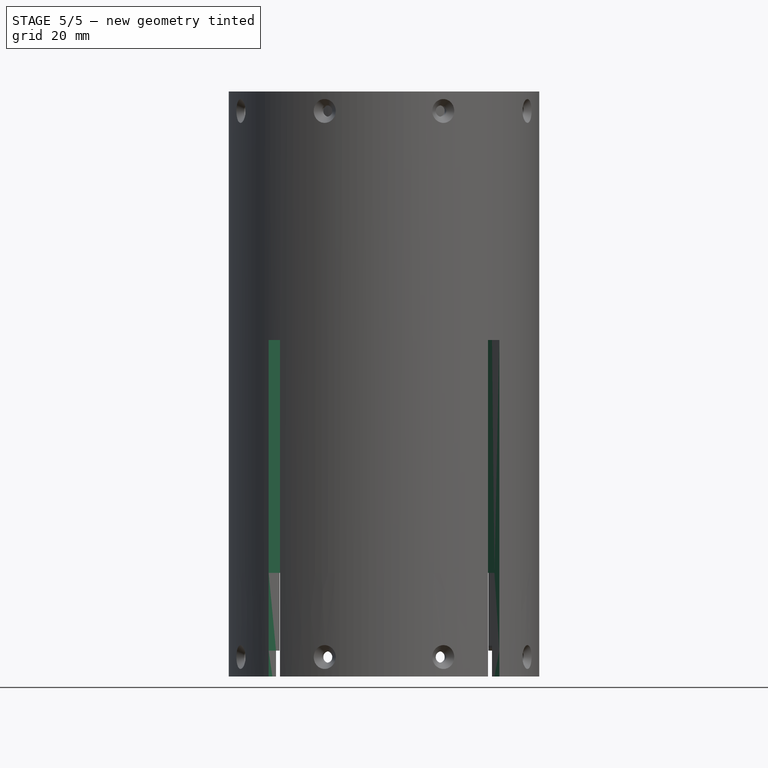
[diagram: stage 5 of 5 — front view after this stage's code; geometry added in this stage tinted green]
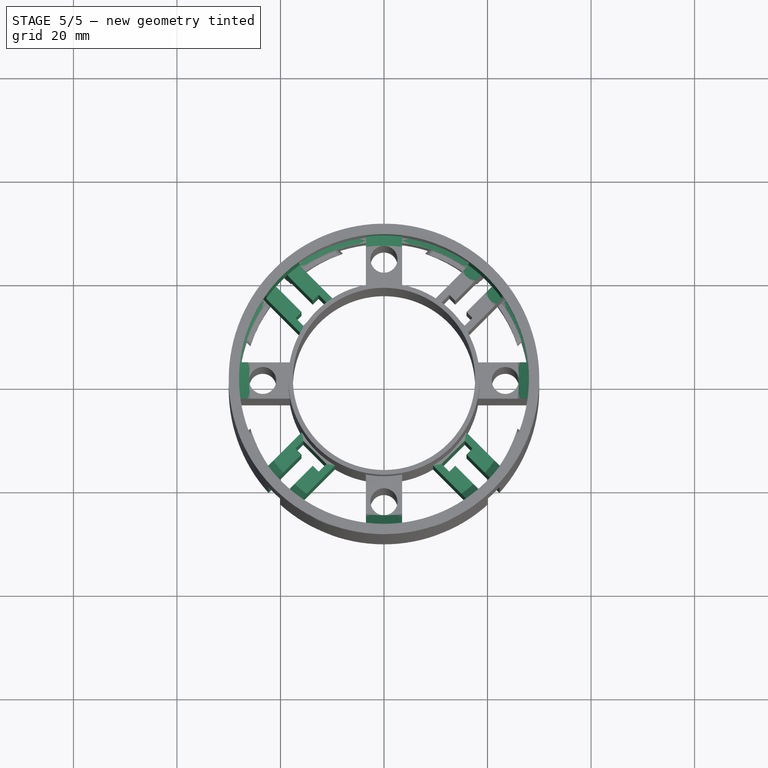
[diagram: stage 5 of 5 — top view after this stage's code; geometry added in this stage tinted green]
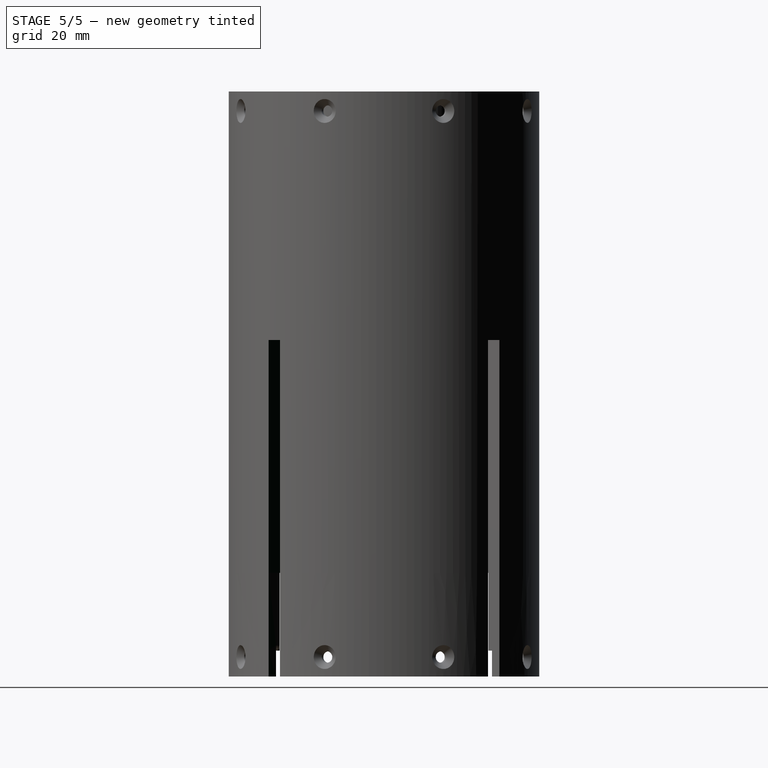
[diagram: stage 5 of 5 — right view after this stage's code; geometry added in this stage tinted green]
FEATURE [PartDesign::PolarPattern] PolarPattern004
  Angle = 360
  Axis = -> Sketch008 [N_Axis]
  BaseFeature = -> Chamfer002
  Mode = 0
  Occurrences = 4
  Offset = 120
  Originals = -> [Pad004,Pocket003,Pocket004]
  Refine = true
  Suppressed = false
  TransformMode = 0
FEATURE [PartDesign::Chamfer] Chamfer003
  Angle = 45
  Base = -> PolarPattern004 [Edge240,Edge235,Edge231,Edge244,Edge249,Edge253,Edge258,Edge265]
  BaseFeature = -> PolarPattern004
  ChamferType = 0
  FlipDirection = false
  Refine = true
  Size = 0.95
  Size2 = 1
  SupportTransform = false
  Suppressed = false
  UseAllEdges = false
FEATURE [Sketcher::SketchObject] Sketch020
  ArcFitTolerance = 1e-06
  AttachmentSupport = -> [Chamfer003]
  ExternalGeometry = -> [Chamfer003]
  FullyConstrained = false
  MakeInternals = false
  MapMode = 5
  Placement = pos=(0,0,75.5) rot=(0,0,1;0rad)
  sketch-geometry (16):
    g0: LineSegment StartX=-3.5 StartY=28.788 StartZ=0 EndX=-3.5 EndY=27.7804 EndZ=0
    g1: LineSegment StartX=3.5 StartY=28.788 StartZ=0 EndX=3.5 EndY=27.7804 EndZ=0
    g2: ArcOfCircle CenterX=0 CenterY=0 CenterZ=0 NormalX=0 NormalY=0 NormalZ=1 AngleXU=0 Radius=29 StartAngle=1.44981 EndAngle=1.69178
    g3: ArcOfCircle CenterX=0 CenterY=0 CenterZ=0 NormalX=0 NormalY=0 NormalZ=1 AngleXU=0 Radius=28 StartAngle=1.44547 EndAngle=1.69612
    g4: ArcOfCircle CenterX=0 CenterY=0 CenterZ=0 NormalX=0 NormalY=0 NormalZ=1 AngleXU=0 Radius=29 StartAngle=6.1622 EndAngle=6.40417
    g5: LineSegment StartX=28.788 StartY=3.5 StartZ=0 EndX=27.7804 EndY=3.5 EndZ=0
    g6: LineSegment StartX=28.788 StartY=-3.50001 StartZ=0 EndX=27.7804 EndY=-3.50001 EndZ=0
    g7: ArcOfCircle CenterX=0 CenterY=0 CenterZ=0 NormalX=0 NormalY=0 NormalZ=1 AngleXU=0 Radius=28 StartAngle=6.15786 EndAngle=6.40851
    g8: LineSegment StartX=3.5 StartY=-28.788 StartZ=0 EndX=3.48942 EndY=-27.7817 EndZ=0
    g9: LineSegment StartX=-3.5 StartY=-28.788 StartZ=0 EndX=-3.48942 EndY=-27.7817 EndZ=0
    g10: ArcOfCircle CenterX=7.1e-15 CenterY=0.032589 CenterZ=0 NormalX=0 NormalY=0 NormalZ=1 AngleXU=0 Radius=29.0324 StartAngle=4.59154 EndAngle=4.83324
    g11: ArcOfCircle CenterX=7.1e-15 CenterY=0.032589 CenterZ=0 NormalX=0 NormalY=0 NormalZ=1 AngleXU=0 Radius=28.0323 StartAngle=4.58759 EndAngle=4.83719
    g12: ArcOfCircle CenterX=0 CenterY=1.31843e-11 CenterZ=0 NormalX=0 NormalY=0 NormalZ=1 AngleXU=0 Radius=29 StartAngle=3.02061 EndAngle=3.26258
    g13: LineSegment StartX=-28.788 StartY=3.49999 StartZ=0 EndX=-27.7804 EndY=3.49999 EndZ=0
    g14: LineSegment StartX=-28.788 StartY=-3.5 StartZ=0 EndX=-27.7804 EndY=-3.5 EndZ=0
    g15: ArcOfCircle CenterX=0 CenterY=1.31843e-11 CenterZ=0 NormalX=0 NormalY=0 NormalZ=1 AngleXU=0 Radius=28 StartAngle=3.01627 EndAngle=3.26692
  constraints (37):
    c: Coincident(g0,g-6)
    c: Coincident(g1,g-6)
    c: Coincident(g2,g-1)
    c: Coincident(g3,g2)
    c: Tangent(g3,g-3)
    c: PointOnObject(g1,g3)
    c: Coincident(g3,g0)
    c: PointOnObject(g3,g-4)
    c: Coincident(g2,g0)
    c: Coincident(g4,g2)
    c: Coincident(g4,g-8)
    c: Coincident(g5,g4)
    c: Coincident(g6,g4)
    c: Horizontal(g6)
    c: PointOnObject(g5,g-3)
    c: PointOnObject(g6,g-3)
    c: Coincident(g7,g2)
    c: Coincident(g7,g6)
    c: Coincident(g7,g5)
    c: Coincident(g8,g-10)
    c: Coincident(g9,g-11)
    c: PointOnObject(g8,g-3)
    c: PointOnObject(g9,g-3)
    c: Coincident(g11,g10)
    c: Coincident(g11,g9)
    c: Coincident(g11,g8)
    c: Coincident(g10,g9)
    c: Coincident(g10,g8)
    c: Coincident(g13,g12)
    c: Horizontal(g13)
    c: Coincident(g14,g12)
    c: Horizontal(g14)
    c: PointOnObject(g13,g-3)
    c: PointOnObject(g14,g-3)
    c: Coincident(g15,g12)
    c: Coincident(g15,g13)
    c: Coincident(g15,g14)
FEATURE [PartDesign::Pad] Pad009  label="rinforzo_fusoliera_1"
  BaseFeature = -> Chamfer003
  Direction = (0,0,1)
  Length = 10
  Length2 = 10
  Profile = -> Sketch020
  ReferenceAxis = -> Sketch020 [N_Axis]
  Refine = true
  Suppressed = false
  Type = 0
FEATURE [Sketcher::SketchObject] Sketch021
  ArcFitTolerance = 1e-06
  AttachmentSupport = -> [Pad009]
  ExternalGeometry = -> [Pad009]
  FullyConstrained = false
  MakeInternals = false
  MapMode = 5
  Placement = pos=(0,0,45) rot=(0,0,1;0rad)
  sketch-geometry (16):
    g0: ArcOfCircle CenterX=0 CenterY=0 CenterZ=0 NormalX=0 NormalY=0 NormalZ=1 AngleXU=0 Radius=29 StartAngle=0.627851 EndAngle=0.942946
    g1: LineSegment StartX=17.0348 StartY=23.4695 StartZ=0 EndX=16.3185 EndY=22.7532 EndZ=0
    g2: LineSegment StartX=23.4695 StartY=17.0348 StartZ=0 EndX=22.7532 EndY=16.3185 EndZ=0
    g3: ArcOfCircle CenterX=0 CenterY=0 CenterZ=0 NormalX=0 NormalY=0 NormalZ=1 AngleXU=0 Radius=28 StartAngle=0.622175 EndAngle=0.948622
    g4: ArcOfCircle CenterX=0 CenterY=0 CenterZ=0 NormalX=0 NormalY=0 NormalZ=1 AngleXU=0 Radius=29 StartAngle=2.19865 EndAngle=2.51374
    g5: LineSegment StartX=-23.4695 StartY=17.0348 StartZ=0 EndX=-22.7532 EndY=16.3185 EndZ=0
    g6: LineSegment StartX=-17.0348 StartY=23.4695 StartZ=0 EndX=-16.3185 EndY=22.7532 EndZ=0
    g7: ArcOfCircle CenterX=0 CenterY=0 CenterZ=0 NormalX=0 NormalY=0 NormalZ=1 AngleXU=0 Radius=28 StartAngle=2.19297 EndAngle=2.51942
    g8: ArcOfCircle CenterX=0 CenterY=0 CenterZ=0 NormalX=0 NormalY=0 NormalZ=1 AngleXU=0 Radius=29 StartAngle=3.76944 EndAngle=4.08454
    g9: LineSegment StartX=-23.4695 StartY=-17.0348 StartZ=0 EndX=-22.7532 EndY=-16.3185 EndZ=0
    g10: LineSegment StartX=-17.0348 StartY=-23.4695 StartZ=0 EndX=-16.3185 EndY=-22.7532 EndZ=0
    g11: ArcOfCircle CenterX=0 CenterY=0 CenterZ=0 NormalX=0 NormalY=0 NormalZ=1 AngleXU=0 Radius=28 StartAngle=3.76377 EndAngle=4.09021
    g12: ArcOfCircle CenterX=0 CenterY=0 CenterZ=0 NormalX=0 NormalY=0 NormalZ=1 AngleXU=0 Radius=29 StartAngle=5.34024 EndAngle=5.65533
    g13: LineSegment StartX=23.4695 StartY=-17.0348 StartZ=0 EndX=22.7532 EndY=-16.3185 EndZ=0
    g14: LineSegment StartX=17.0348 StartY=-23.4695 StartZ=0 EndX=16.3185 EndY=-22.7532 EndZ=0
    g15: ArcOfCircle CenterX=0 CenterY=0 CenterZ=0 NormalX=0 NormalY=0 NormalZ=1 AngleXU=0 Radius=28 StartAngle=5.33456 EndAngle=5.66101
  constraints (33):
    c: Coincident(g0,g-1)
    c: Coincident(g0,g-6)
    c: Coincident(g1,g0)
    c: Coincident(g2,g0)
    c: PointOnObject(g2,g-3)
    c: Coincident(g3,g0)
    c: Coincident(g3,g1)
    c: Coincident(g3,g2)
    c: Coincident(g4,g0)
    c: Coincident(g4,g-9)
    c: Coincident(g5,g4)
    c: Coincident(g6,g4)
    c: PointOnObject(g5,g-3)
    c: Coincident(g7,g0)
    c: Coincident(g7,g6)
    c: Coincident(g7,g5)
    c: Coincident(g8,g0)
    c: Coincident(g8,g-10)
    c: Coincident(g9,g8)
    c: Coincident(g10,g8)
    c: PointOnObject(g9,g-3)
    c: Coincident(g11,g0)
    c: Coincident(g11,g10)
    c: Coincident(g11,g9)
    c: Coincident(g12,g0)
    c: Coincident(g12,g-12)
    c: Coincident(g13,g12)
    c: Coincident(g14,g12)
    c: PointOnObject(g13,g-3)
    c: PointOnObject(g14,g-3)
    c: Coincident(g15,g0)
    c: Coincident(g15,g13)
    c: Coincident(g15,g14)
FEATURE [PartDesign::Pad] Pad010  label="rinforzo_fusoliera_2"
  BaseFeature = -> Pad009
  Direction = (0,0,1)
  Length = 41
  Length2 = 10
  Profile = -> Sketch021
  ReferenceAxis = -> Sketch021 [N_Axis]
  Refine = true
  Suppressed = false
  Type = 0
FEATURE [PartDesign::Chamfer] Chamfer
  Angle = 45
  Base = -> Pad010 [Edge162,Edge154,Edge173,Edge174,Edge188,Edge196,Edge211,Edge225,Edge233,Edge249,Edge263,Edge271,Edge28]
  BaseFeature = -> Pad010
  ChamferType = 0
  FlipDirection = false
  Refine = true
  Size = 1.95
  Size2 = 1
  SupportTransform = false
  Suppressed = false
  UseAllEdges = false
FEATURE [PartDesign::Chamfer] Chamfer004
  Angle = 45
  Base = -> Chamfer [Edge580,Edge598,Edge616,Edge618,Edge600,Edge591,Edge573,Edge18]
  BaseFeature = -> Chamfer
  ChamferType = 0
  FlipDirection = false
  Refine = true
  Size = 0.95
  Size2 = 1
  SupportTransform = false
  Suppressed = false
  UseAllEdges = false
FEATURE [PartDesign::Body] Body
  AllowCompound = false
  Group = -> [Sketch,Pad,Sketch001,Pad001,Sketch002,Pad002,Sketch003,Pocket,PolarPattern,Sketch004,Pad003,Sketch005,DatumPlane,DatumPlane001,Sketch006,Pocket001,Sketch007,Pocket002,Sketch008,Pad004,Sketch009,Pocket003,Sketch011,Pad006,Sketch012,Pocket004,DatumPlane002,Sketch013,Pad007,PolarPattern002,Sketch014,Pocket005,Sketch015,Pocket006,Fillet,Sketch016,DatumPlane003,DatumPlane004,Sketch017,Sketch018,+14 more]
  Origin = -> Origin
  Tip = -> Chamfer004
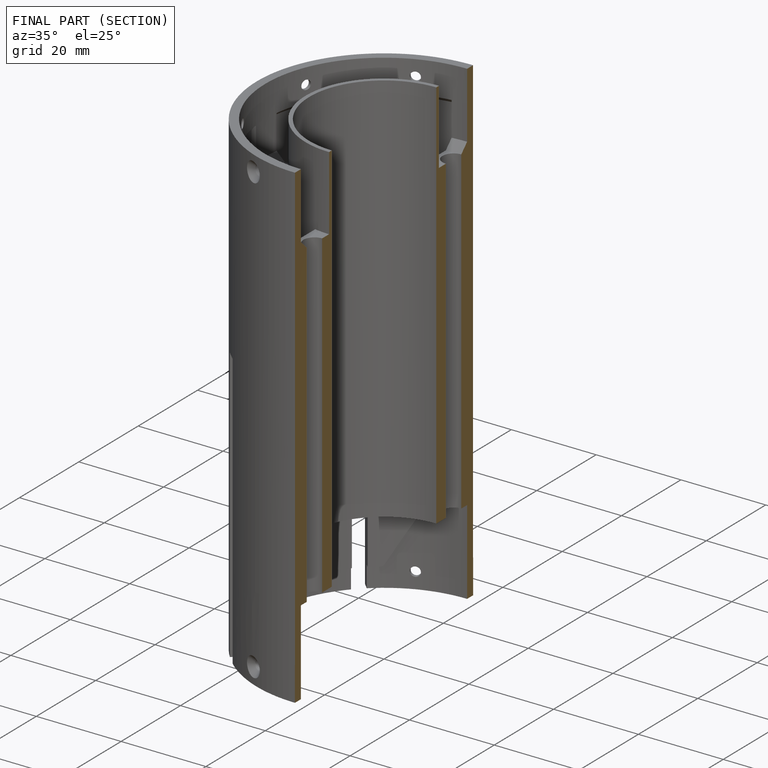
[diagram: finished part — half-section view (interior)]
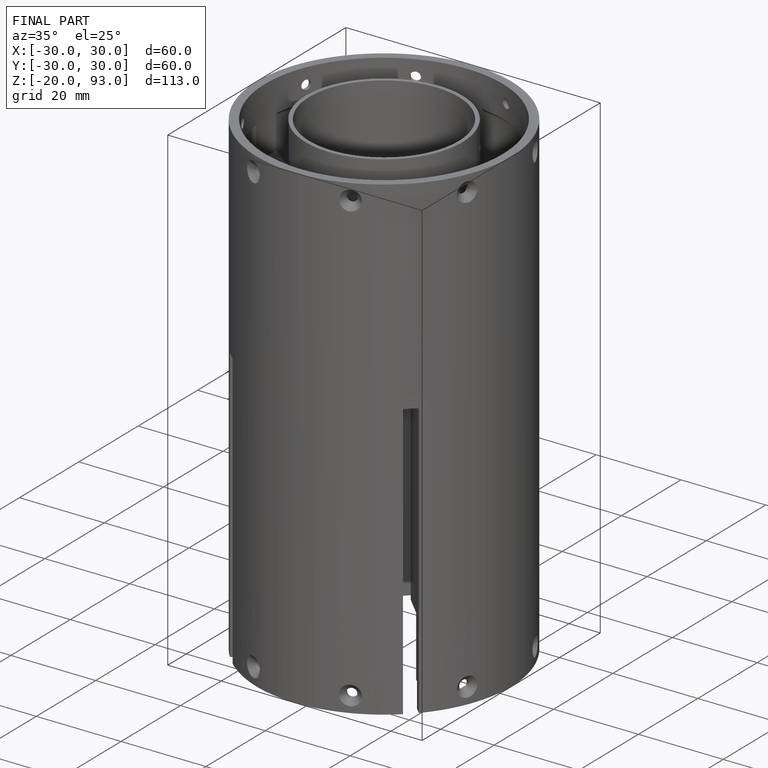
[diagram: finished part — iso view with bounding-box wireframe]
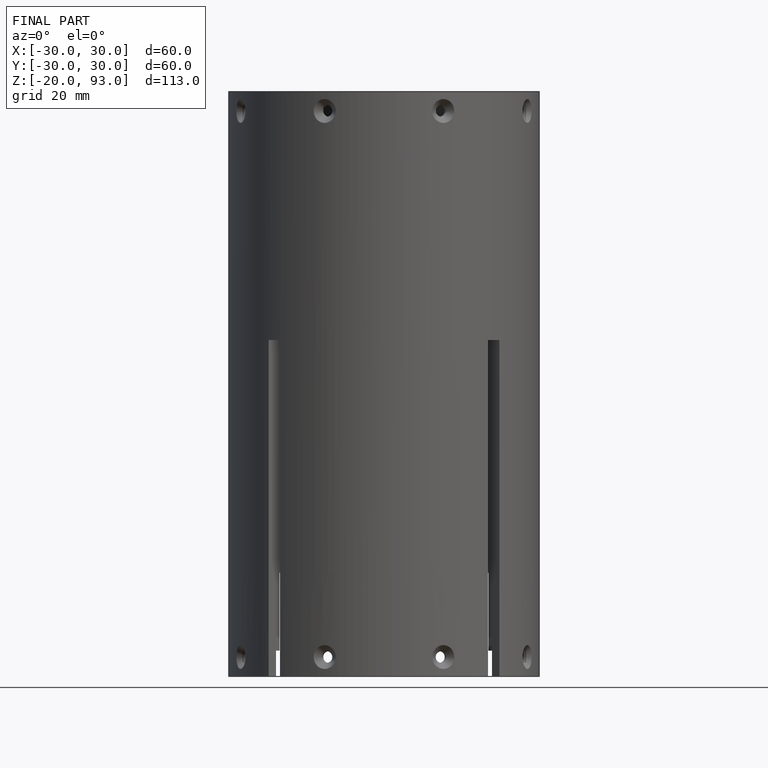
[diagram: finished part — front view with bounding-box wireframe]
